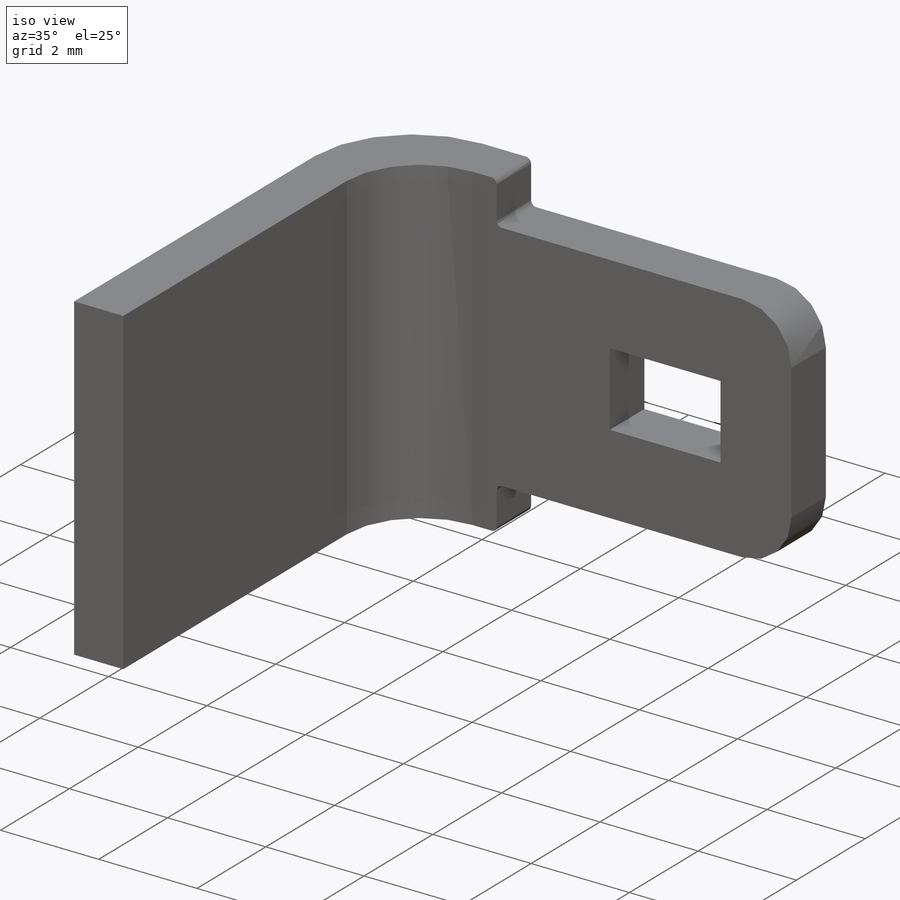
[diagram: iso view]
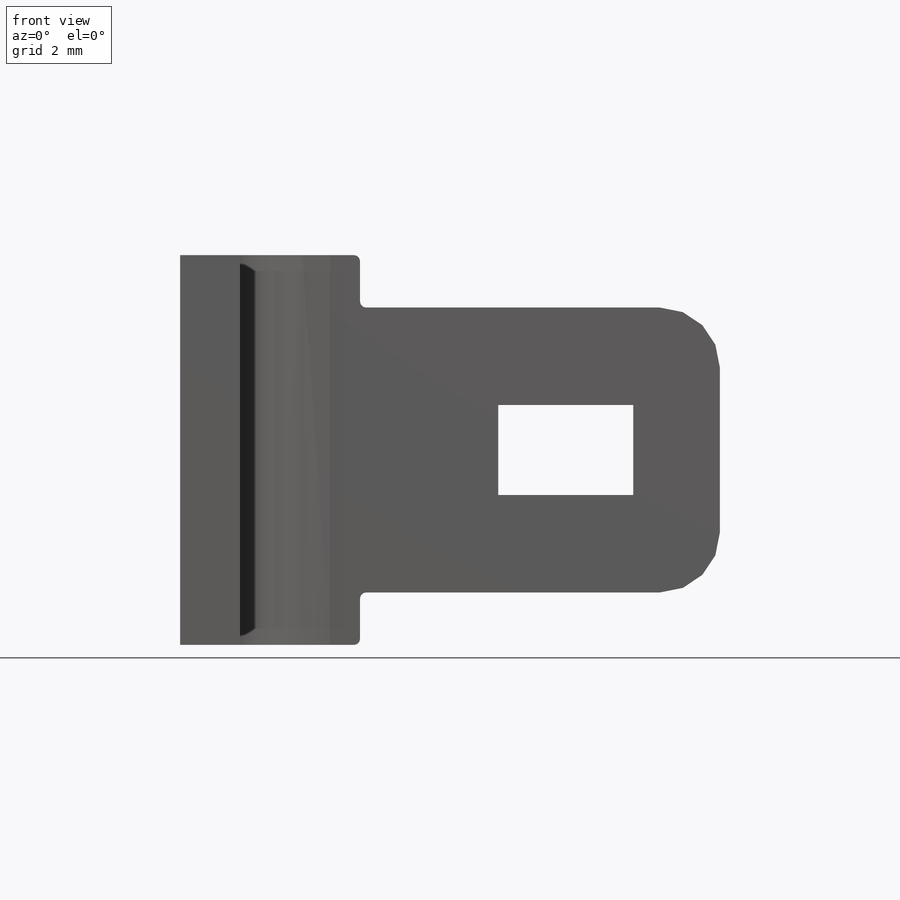
[diagram: front view]
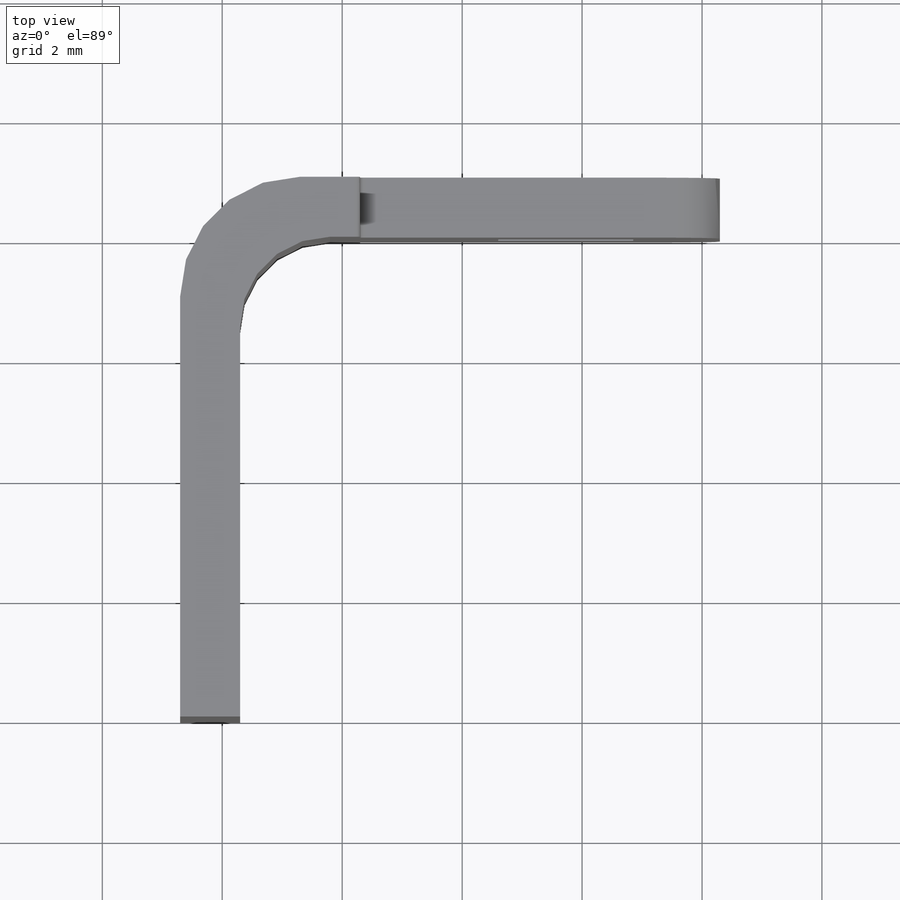
[diagram: top view]
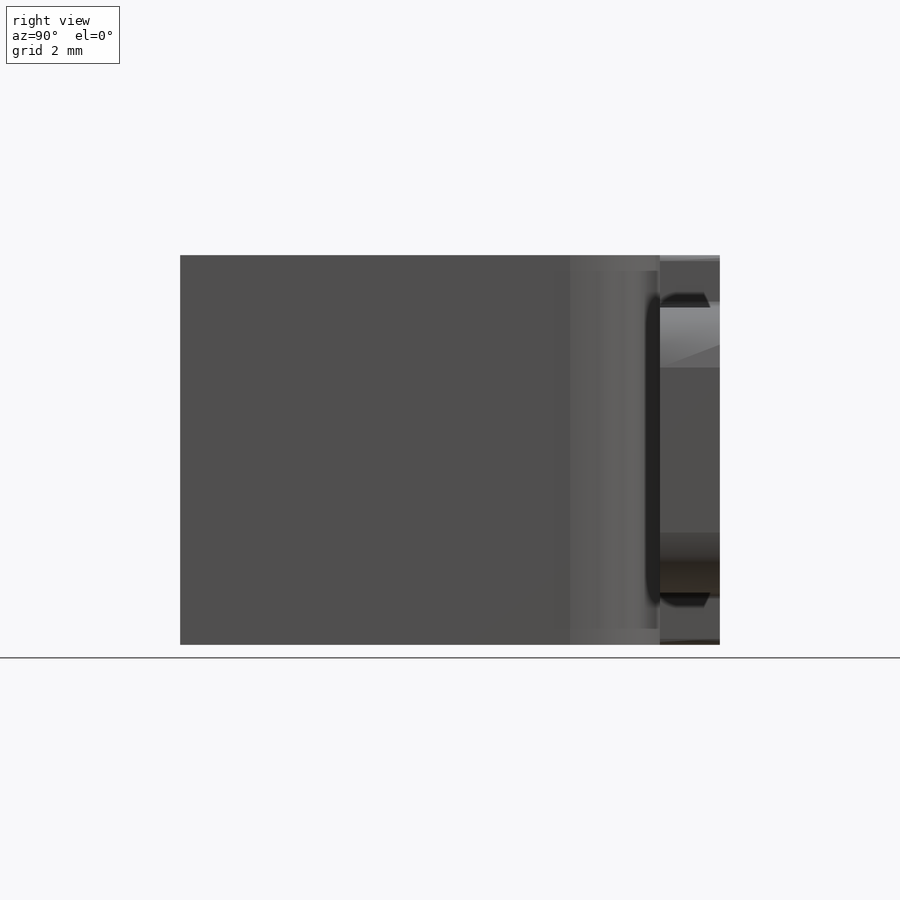
[diagram: right view]
SOLIDWORKS PART (.sldprt)
format: sldprt  version: not decoded by parser v0  size: 239,616 bytes
history: native  units: mm
features: fillet x5, plane x3, sketch x3, cut_extrude x2, material x1, extrude x1 (+9 scaffold rows collapsed)
feature tree (24):
  scaffold x9  (default folders/planes/origin — collapsed)
  material  "Материал <не указан>"
  plane  "Спереди"
  plane  "Сверху"
  plane  "Справа"
  sketch  "Эскиз1"  dims[D1=1.0mm D2=1.0mm D3=9.0mm D4=9.0mm]
  extrude  "Бобышка-Вытянуть1"  Depth=6.5mm
  fillet  "Скругление1"  Radius=2mm
  fillet  "Скругление2"  Radius=1.5mm
  sketch  "Эскиз2"  dims[D1=0.875mm D2=6.0mm]
  cut_extrude  "Вырез-Вытянуть1"  [1 undecoded]
  fillet  "Скругление4"  Radius=1mm
  fillet  "Скругление5"  Radius=0.1mm
  fillet  "Скругление6"  Radius=0.1mm
  sketch  "Эскиз3"  dims[c1.D1=1.5mm c1.D2=2.25mm c1.D3=~1.585731mm c1.D4=2.25mm c2.D3=1.625mm]
  cut_extrude  "Вырез-Вытянуть2"  [1 undecoded]
decode coverage: 9 of 11 modeling features carry decoded parameters
note: ~ marks probable driven/reference dimensions
note: 2 parameter values undecoded
note: suppression state not decoded; provenance and decode notes live in map.json
